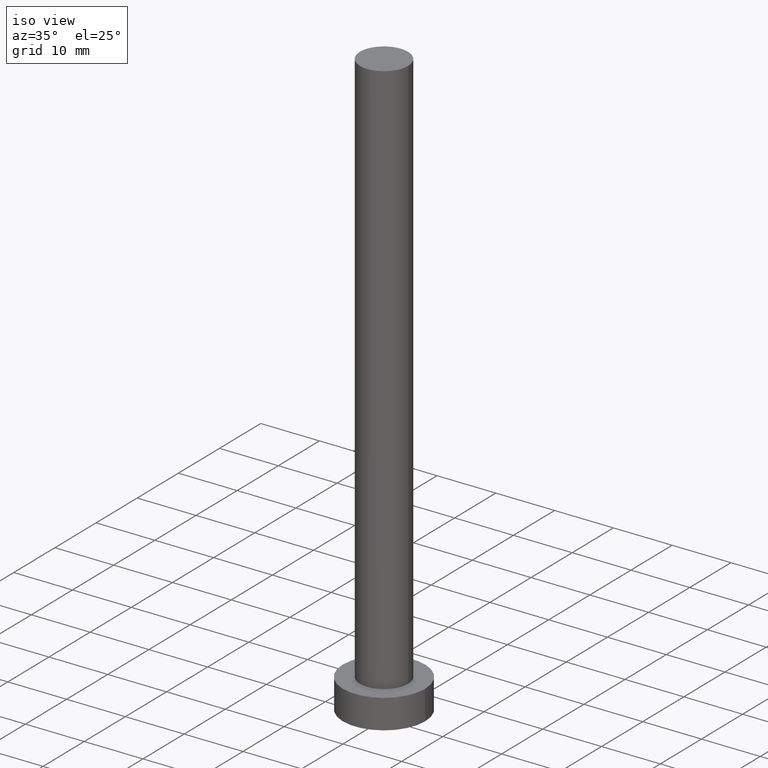
[diagram: clean part render]
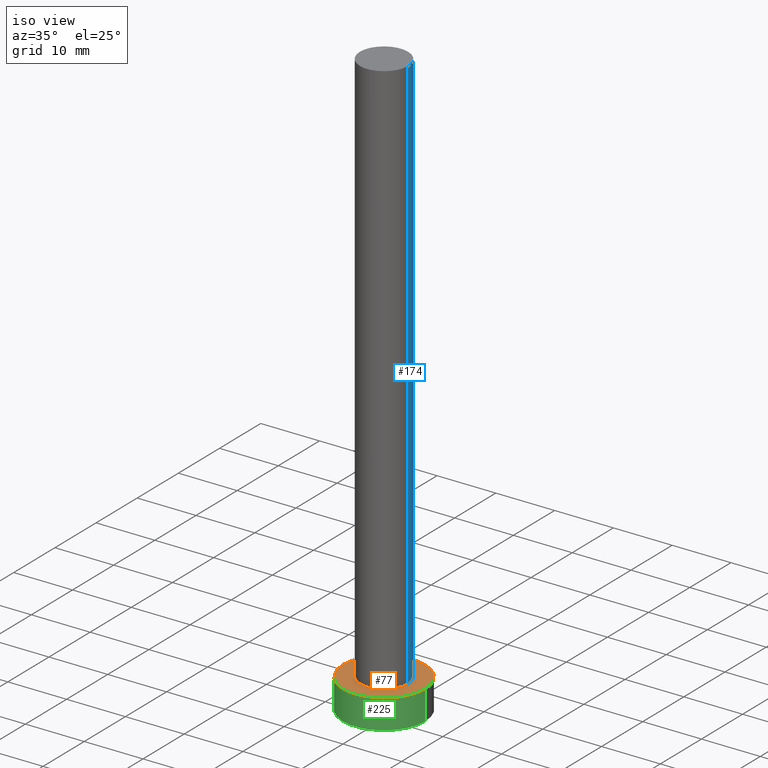
[diagram: same view with three faces highlighted in distinct colors, each labeled with its STEP entity id]
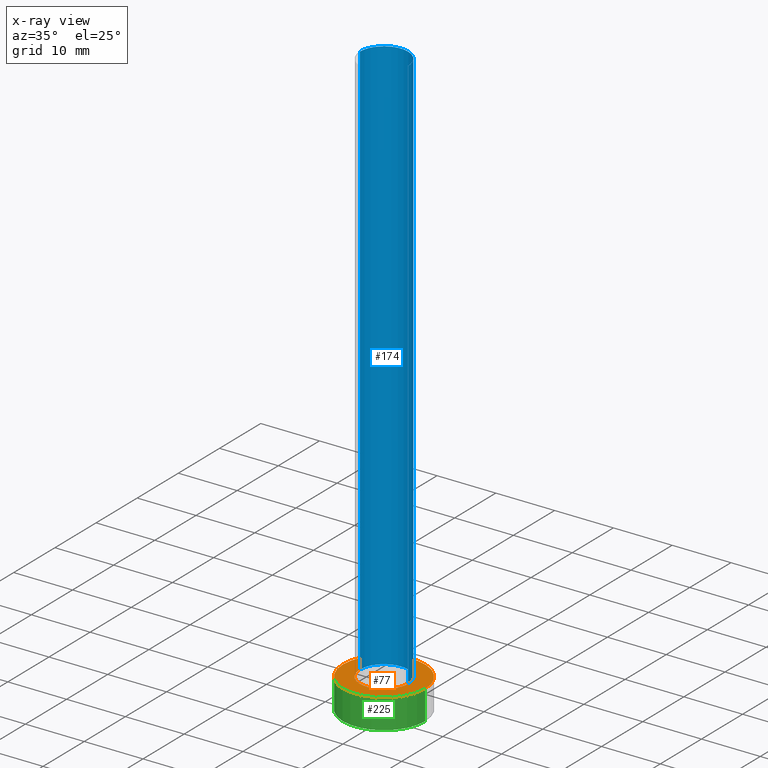
[diagram: x-ray of the same camera — body ghosted, the three highlighted faces saturated]
A machine part, iso view with three faces highlighted in distinct colors.
The next image is the same camera in x-ray (body ghosted, the three faces saturated) — at least one of them is partly hidden behind the body in this view.
Their STEP definitions:

[orange] entity #77 — the highlighted planar face has unit normal (0, 0, 1).
#1 = EDGE_LOOP ( 'NONE', ( #214, #141 ) ) ;
#15 = CARTESIAN_POINT ( 'NONE',  ( 4.099999999999999645, 5.021051876504147385E-16, 5.000000000000000000 ) ) ;
#21 = AXIS2_PLACEMENT_3D ( 'NONE', #63, #89, #158 ) ;
#28 = CARTESIAN_POINT ( 'NONE',  ( -7.000000000000000000, 0.000000000000000000, 5.000000000000000000 ) ) ;
#34 = DIRECTION ( 'NONE',  ( 0.000000000000000000, 0.000000000000000000, 1.000000000000000000 ) ) ;
#36 = CARTESIAN_POINT ( 'NONE',  ( 0.000000000000000000, 0.000000000000000000, 5.000000000000000000 ) ) ;
#38 = DIRECTION ( 'NONE',  ( 1.000000000000000000, 0.000000000000000000, 0.000000000000000000 ) ) ;
#40 = DIRECTION ( 'NONE',  ( 1.000000000000000000, 0.000000000000000000, 0.000000000000000000 ) ) ;
#48 = AXIS2_PLACEMENT_3D ( 'NONE', #162, #67, #84 ) ;
#50 = ORIENTED_EDGE ( 'NONE', *, *, #143, .T. ) ;
#51 = EDGE_CURVE ( 'NONE', #224, #213, #167, .T. ) ;
#52 = AXIS2_PLACEMENT_3D ( 'NONE', #79, #34, #38 ) ;
#53 = FACE_OUTER_BOUND ( 'NONE', #142, .T. ) ;
#55 = EDGE_CURVE ( 'NONE', #160, #234, #209, .T. ) ;
#63 = CARTESIAN_POINT ( 'NONE',  ( 0.000000000000000000, 0.000000000000000000, 5.000000000000000000 ) ) ;
#67 = DIRECTION ( 'NONE',  ( 0.000000000000000000, 0.000000000000000000, 1.000000000000000000 ) ) ;
#69 = CIRCLE ( 'NONE', #52, 4.099999999999999645 ) ;
#70 = EDGE_CURVE ( 'NONE', #213, #224, #69, .T. ) ;
#72 = PLANE ( 'NONE',  #82 ) ;
#74 = DIRECTION ( 'NONE',  ( 0.000000000000000000, 0.000000000000000000, 1.000000000000000000 ) ) ;
#77 = ADVANCED_FACE ( 'NONE', ( #250, #53 ), #72, .T. ) ;
#79 = CARTESIAN_POINT ( 'NONE',  ( 0.000000000000000000, 0.000000000000000000, 5.000000000000000000 ) ) ;
#82 = AXIS2_PLACEMENT_3D ( 'NONE', #36, #74, #184 ) ;
#84 = DIRECTION ( 'NONE',  ( 1.000000000000000000, 0.000000000000000000, 0.000000000000000000 ) ) ;
#89 = DIRECTION ( 'NONE',  ( 0.000000000000000000, 0.000000000000000000, 1.000000000000000000 ) ) ;
#103 = ORIENTED_EDGE ( 'NONE', *, *, #55, .T. ) ;
#126 = CARTESIAN_POINT ( 'NONE',  ( 0.000000000000000000, 0.000000000000000000, 5.000000000000000000 ) ) ;
#131 = DIRECTION ( 'NONE',  ( 0.000000000000000000, 0.000000000000000000, 1.000000000000000000 ) ) ;
#141 = ORIENTED_EDGE ( 'NONE', *, *, #70, .F. ) ;
#142 = EDGE_LOOP ( 'NONE', ( #50, #103 ) ) ;
#143 = EDGE_CURVE ( 'NONE', #234, #160, #200, .T. ) ;
#158 = DIRECTION ( 'NONE',  ( 1.000000000000000000, 0.000000000000000000, 0.000000000000000000 ) ) ;
#160 = VERTEX_POINT ( 'NONE', #253 ) ;
#162 = CARTESIAN_POINT ( 'NONE',  ( 0.000000000000000000, 0.000000000000000000, 5.000000000000000000 ) ) ;
#164 = AXIS2_PLACEMENT_3D ( 'NONE', #126, #131, #40 ) ;
#167 = CIRCLE ( 'NONE', #48, 4.099999999999999645 ) ;
#184 = DIRECTION ( 'NONE',  ( 1.000000000000000000, 0.000000000000000000, -0.000000000000000000 ) ) ;
#200 = CIRCLE ( 'NONE', #164, 7.000000000000000000 ) ;
#207 = CARTESIAN_POINT ( 'NONE',  ( -4.099999999999999645, 0.000000000000000000, 5.000000000000000000 ) ) ;
#209 = CIRCLE ( 'NONE', #21, 7.000000000000000000 ) ;
#213 = VERTEX_POINT ( 'NONE', #15 ) ;
#214 = ORIENTED_EDGE ( 'NONE', *, *, #51, .F. ) ;
#224 = VERTEX_POINT ( 'NONE', #207 ) ;
#234 = VERTEX_POINT ( 'NONE', #28 ) ;
#250 = FACE_BOUND ( 'NONE', #1, .T. ) ;
#253 = CARTESIAN_POINT ( 'NONE',  ( 7.000000000000000000, 8.572527594031473190E-16, 5.000000000000000000 ) ) ;

[blue] entity #174 — the highlighted cylindrical surface (edge-blend (fillet) strip) has radius 4.1 mm, axis along (-0, -0, -1).
#2 = CARTESIAN_POINT ( 'NONE',  ( 4.099999999999999645, 5.021051876504147385E-16, 100.0000000000000000 ) ) ;
#5 = DIRECTION ( 'NONE',  ( -0.000000000000000000, -0.000000000000000000, -1.000000000000000000 ) ) ;
#6 = DIRECTION ( 'NONE',  ( -1.000000000000000000, 0.000000000000000000, 0.000000000000000000 ) ) ;
#8 = VERTEX_POINT ( 'NONE', #2 ) ;
#15 = CARTESIAN_POINT ( 'NONE',  ( 4.099999999999999645, 5.021051876504147385E-16, 5.000000000000000000 ) ) ;
#16 = CARTESIAN_POINT ( 'NONE',  ( 0.000000000000000000, 0.000000000000000000, 100.0000000000000000 ) ) ;
#31 = CIRCLE ( 'NONE', #169, 4.099999999999999645 ) ;
#32 = EDGE_CURVE ( 'NONE', #199, #224, #46, .T. ) ;
#34 = DIRECTION ( 'NONE',  ( 0.000000000000000000, 0.000000000000000000, 1.000000000000000000 ) ) ;
#35 = DIRECTION ( 'NONE',  ( -0.000000000000000000, -0.000000000000000000, -1.000000000000000000 ) ) ;
#37 = VECTOR ( 'NONE', #5, 1000.000000000000000 ) ;
#38 = DIRECTION ( 'NONE',  ( 1.000000000000000000, 0.000000000000000000, 0.000000000000000000 ) ) ;
#46 = LINE ( 'NONE', #62, #37 ) ;
#52 = AXIS2_PLACEMENT_3D ( 'NONE', #79, #34, #38 ) ;
#59 = ORIENTED_EDGE ( 'NONE', *, *, #128, .F. ) ;
#62 = CARTESIAN_POINT ( 'NONE',  ( -4.099999999999999645, 0.000000000000000000, 100.0000000000000000 ) ) ;
#69 = CIRCLE ( 'NONE', #52, 4.099999999999999645 ) ;
#70 = EDGE_CURVE ( 'NONE', #213, #224, #69, .T. ) ;
#76 = AXIS2_PLACEMENT_3D ( 'NONE', #193, #233, #6 ) ;
#79 = CARTESIAN_POINT ( 'NONE',  ( 0.000000000000000000, 0.000000000000000000, 5.000000000000000000 ) ) ;
#109 = ORIENTED_EDGE ( 'NONE', *, *, #70, .T. ) ;
#120 = EDGE_LOOP ( 'NONE', ( #59, #163, #109, #175 ) ) ;
#128 = EDGE_CURVE ( 'NONE', #8, #199, #31, .T. ) ;
#129 = CARTESIAN_POINT ( 'NONE',  ( -4.099999999999999645, 0.000000000000000000, 100.0000000000000000 ) ) ;
#146 = CYLINDRICAL_SURFACE ( 'NONE', #76, 4.099999999999999645 ) ;
#163 = ORIENTED_EDGE ( 'NONE', *, *, #198, .T. ) ;
#168 = FACE_OUTER_BOUND ( 'NONE', #120, .T. ) ;
#169 = AXIS2_PLACEMENT_3D ( 'NONE', #16, #226, #230 ) ;
#174 = ADVANCED_FACE ( 'NONE', ( #168 ), #146, .T. ) ;
#175 = ORIENTED_EDGE ( 'NONE', *, *, #32, .F. ) ;
#193 = CARTESIAN_POINT ( 'NONE',  ( 0.000000000000000000, 0.000000000000000000, 100.0000000000000000 ) ) ;
#198 = EDGE_CURVE ( 'NONE', #8, #213, #252, .T. ) ;
#199 = VERTEX_POINT ( 'NONE', #129 ) ;
#207 = CARTESIAN_POINT ( 'NONE',  ( -4.099999999999999645, 0.000000000000000000, 5.000000000000000000 ) ) ;
#208 = CARTESIAN_POINT ( 'NONE',  ( 4.099999999999999645, 5.021051876504147385E-16, 100.0000000000000000 ) ) ;
#213 = VERTEX_POINT ( 'NONE', #15 ) ;
#217 = VECTOR ( 'NONE', #35, 1000.000000000000000 ) ;
#224 = VERTEX_POINT ( 'NONE', #207 ) ;
#226 = DIRECTION ( 'NONE',  ( 0.000000000000000000, 0.000000000000000000, 1.000000000000000000 ) ) ;
#230 = DIRECTION ( 'NONE',  ( 1.000000000000000000, 0.000000000000000000, 0.000000000000000000 ) ) ;
#233 = DIRECTION ( 'NONE',  ( -0.000000000000000000, -0.000000000000000000, -1.000000000000000000 ) ) ;
#252 = LINE ( 'NONE', #208, #217 ) ;

[green] entity #225 — the highlighted cylindrical surface (partial cylindrical patch) has radius 7 mm, axis along (-0, -0, -1).
#12 = LINE ( 'NONE', #97, #227 ) ;
#22 = EDGE_LOOP ( 'NONE', ( #189, #245, #194, #106 ) ) ;
#28 = CARTESIAN_POINT ( 'NONE',  ( -7.000000000000000000, 0.000000000000000000, 5.000000000000000000 ) ) ;
#40 = DIRECTION ( 'NONE',  ( 1.000000000000000000, 0.000000000000000000, 0.000000000000000000 ) ) ;
#42 = AXIS2_PLACEMENT_3D ( 'NONE', #114, #152, #145 ) ;
#56 = CARTESIAN_POINT ( 'NONE',  ( 7.000000000000000000, 8.572527594031473190E-16, 0.000000000000000000 ) ) ;
#71 = DIRECTION ( 'NONE',  ( -0.000000000000000000, -0.000000000000000000, -1.000000000000000000 ) ) ;
#78 = DIRECTION ( 'NONE',  ( -0.000000000000000000, -0.000000000000000000, -1.000000000000000000 ) ) ;
#97 = CARTESIAN_POINT ( 'NONE',  ( 7.000000000000000000, 8.572527594031473190E-16, 5.000000000000000000 ) ) ;
#100 = CARTESIAN_POINT ( 'NONE',  ( -7.000000000000000000, 0.000000000000000000, 0.000000000000000000 ) ) ;
#101 = DIRECTION ( 'NONE',  ( -1.000000000000000000, 0.000000000000000000, 0.000000000000000000 ) ) ;
#106 = ORIENTED_EDGE ( 'NONE', *, *, #112, .T. ) ;
#107 = LINE ( 'NONE', #113, #147 ) ;
#108 = VERTEX_POINT ( 'NONE', #100 ) ;
#112 = EDGE_CURVE ( 'NONE', #108, #133, #249, .T. ) ;
#113 = CARTESIAN_POINT ( 'NONE',  ( -7.000000000000000000, 0.000000000000000000, 5.000000000000000000 ) ) ;
#114 = CARTESIAN_POINT ( 'NONE',  ( 0.000000000000000000, 0.000000000000000000, 0.000000000000000000 ) ) ;
#126 = CARTESIAN_POINT ( 'NONE',  ( 0.000000000000000000, 0.000000000000000000, 5.000000000000000000 ) ) ;
#130 = CARTESIAN_POINT ( 'NONE',  ( 0.000000000000000000, 0.000000000000000000, 5.000000000000000000 ) ) ;
#131 = DIRECTION ( 'NONE',  ( 0.000000000000000000, 0.000000000000000000, 1.000000000000000000 ) ) ;
#133 = VERTEX_POINT ( 'NONE', #56 ) ;
#143 = EDGE_CURVE ( 'NONE', #234, #160, #200, .T. ) ;
#145 = DIRECTION ( 'NONE',  ( 1.000000000000000000, 0.000000000000000000, 0.000000000000000000 ) ) ;
#147 = VECTOR ( 'NONE', #71, 1000.000000000000000 ) ;
#152 = DIRECTION ( 'NONE',  ( 0.000000000000000000, 0.000000000000000000, 1.000000000000000000 ) ) ;
#160 = VERTEX_POINT ( 'NONE', #253 ) ;
#164 = AXIS2_PLACEMENT_3D ( 'NONE', #126, #131, #40 ) ;
#165 = EDGE_CURVE ( 'NONE', #160, #133, #12, .T. ) ;
#170 = FACE_OUTER_BOUND ( 'NONE', #22, .T. ) ;
#183 = EDGE_CURVE ( 'NONE', #234, #108, #107, .T. ) ;
#186 = CYLINDRICAL_SURFACE ( 'NONE', #241, 7.000000000000000000 ) ;
#189 = ORIENTED_EDGE ( 'NONE', *, *, #165, .F. ) ;
#194 = ORIENTED_EDGE ( 'NONE', *, *, #183, .T. ) ;
#200 = CIRCLE ( 'NONE', #164, 7.000000000000000000 ) ;
#210 = DIRECTION ( 'NONE',  ( -0.000000000000000000, -0.000000000000000000, -1.000000000000000000 ) ) ;
#225 = ADVANCED_FACE ( 'NONE', ( #170 ), #186, .T. ) ;
#227 = VECTOR ( 'NONE', #78, 1000.000000000000000 ) ;
#234 = VERTEX_POINT ( 'NONE', #28 ) ;
#241 = AXIS2_PLACEMENT_3D ( 'NONE', #130, #210, #101 ) ;
#245 = ORIENTED_EDGE ( 'NONE', *, *, #143, .F. ) ;
#249 = CIRCLE ( 'NONE', #42, 7.000000000000000000 ) ;
#253 = CARTESIAN_POINT ( 'NONE',  ( 7.000000000000000000, 8.572527594031473190E-16, 5.000000000000000000 ) ) ;